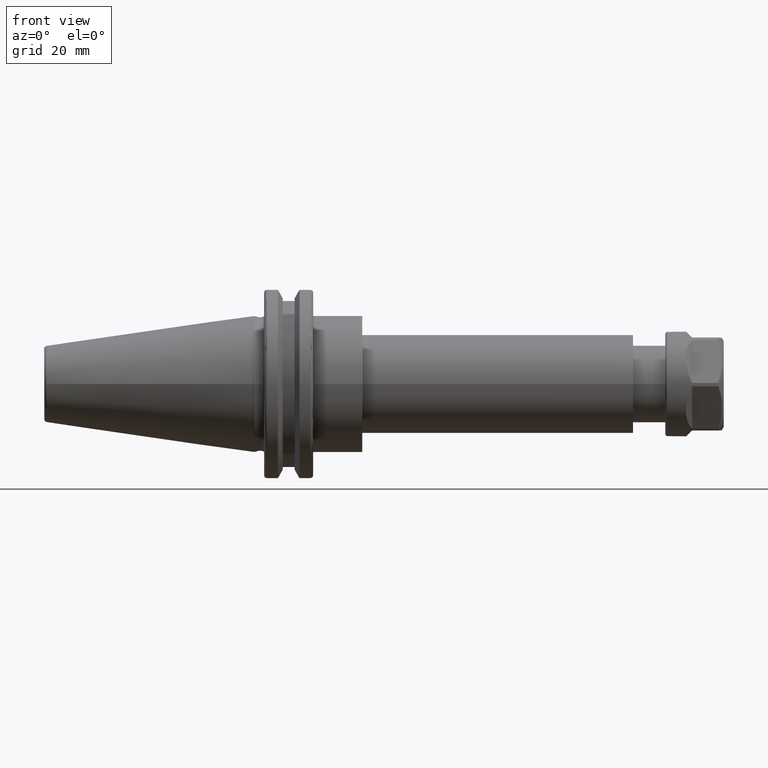
[diagram: clean part render]
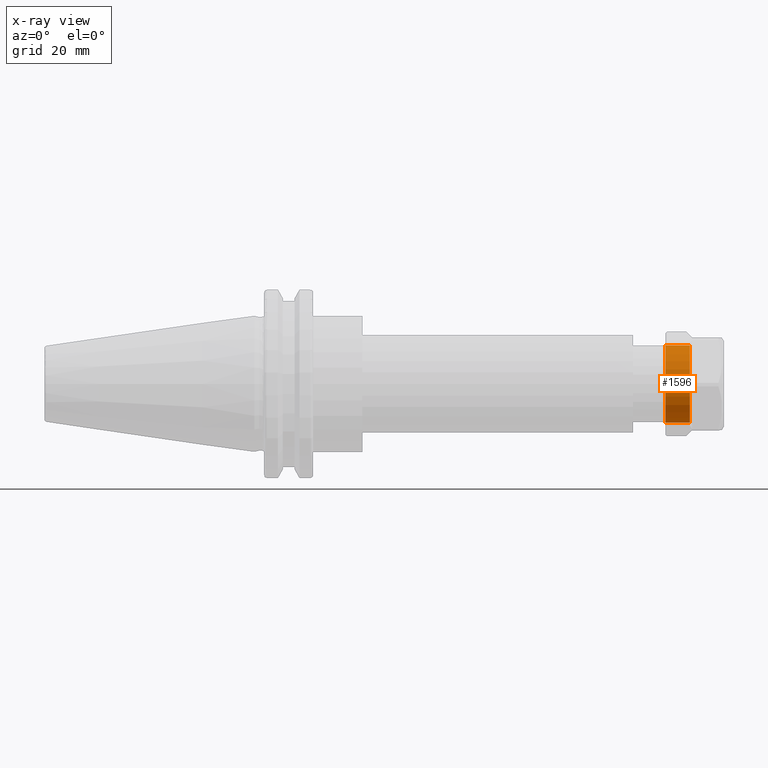
[diagram: x-ray — body ghosted, one internal face saturated and labeled with its STEP entity id]
A machine part, front view, then the same camera in x-ray: the body is ghosted and one INTERNAL B-rep face — a face not visible from any outside direction — is saturated and labeled: STEP entity #1596.
In plain terms, the highlighted cylindrical surface (bore or boss wall) has radius 12.5 mm, axis along (-1, 0, -0).
Its self-contained STEP definition (entity closure, byte-faithful):
#283=FACE_OUTER_BOUND('',#390,.T.);
#390=EDGE_LOOP('',(#1478,#1479,#1480,#1481));
#492=LINE('',#2916,#592);
#592=VECTOR('',#2303,12.5);
#667=CIRCLE('',#1846,12.5);
#668=CIRCLE('',#1847,12.5);
#814=VERTEX_POINT('',#2913);
#815=VERTEX_POINT('',#2915);
#1036=EDGE_CURVE('',#814,#814,#667,.T.);
#1037=EDGE_CURVE('',#814,#815,#492,.T.);
#1038=EDGE_CURVE('',#815,#815,#668,.T.);
#1478=ORIENTED_EDGE('',*,*,#1036,.F.);
#1479=ORIENTED_EDGE('',*,*,#1037,.T.);
#1480=ORIENTED_EDGE('',*,*,#1038,.T.);
#1481=ORIENTED_EDGE('',*,*,#1037,.F.);
#1505=CYLINDRICAL_SURFACE('',#1845,12.5);
#1596=ADVANCED_FACE('',(#283),#1505,.T.);
#1845=AXIS2_PLACEMENT_3D('',#2912,#2299,#2300);
#1846=AXIS2_PLACEMENT_3D('',#2914,#2301,#2302);
#1847=AXIS2_PLACEMENT_3D('',#2917,#2304,#2305);
#2299=DIRECTION('center_axis',(-1.,0.,0.));
#2300=DIRECTION('ref_axis',(0.,-1.,0.));
#2301=DIRECTION('center_axis',(-1.,0.,0.));
#2302=DIRECTION('ref_axis',(0.,1.,0.));
#2303=DIRECTION('',(1.,0.,0.));
#2304=DIRECTION('center_axis',(-1.,0.,0.));
#2305=DIRECTION('ref_axis',(0.,1.,0.));
#2912=CARTESIAN_POINT('Origin',(-9.5,0.,0.));
#2913=CARTESIAN_POINT('',(-9.5,12.5,-1.53080849893419E-15));
#2914=CARTESIAN_POINT('Origin',(-9.5,0.,0.));
#2915=CARTESIAN_POINT('',(-1.5,12.5,-1.53080849893419E-15));
#2916=CARTESIAN_POINT('',(-9.5,12.5,-1.53080849893419E-15));
#2917=CARTESIAN_POINT('Origin',(-1.5,0.,0.));